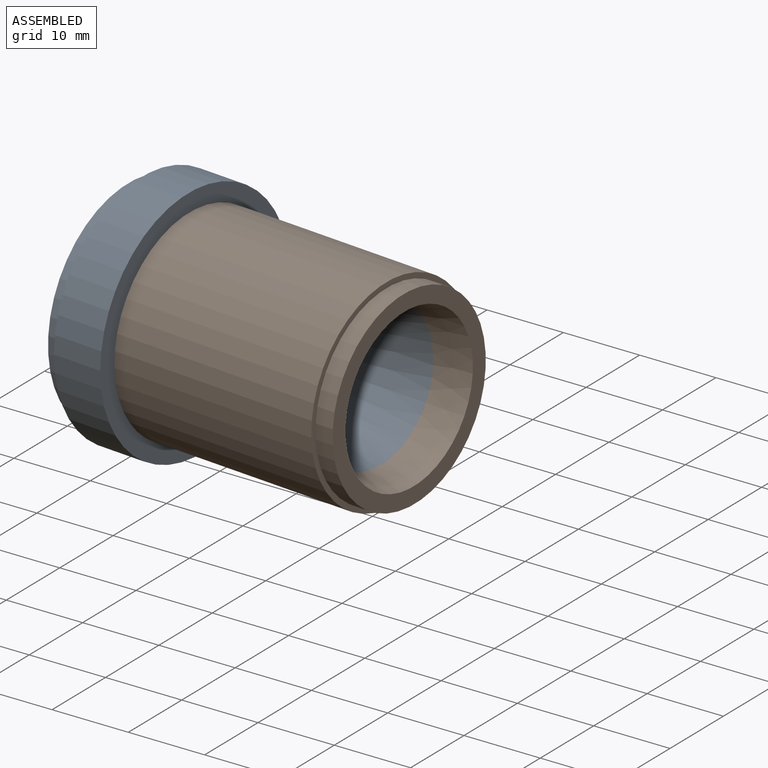
[diagram: assembled view]
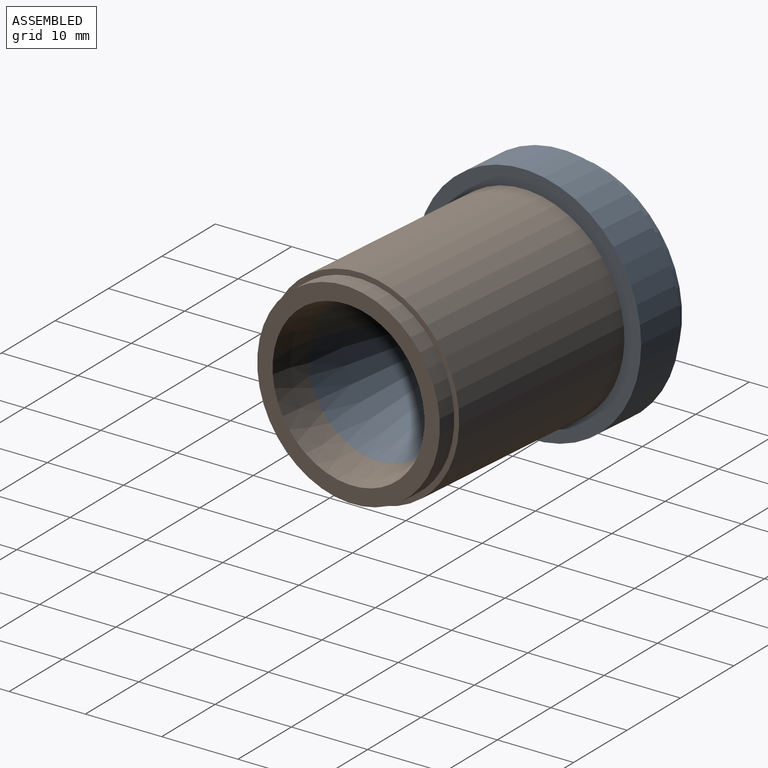
[diagram: assembled view, second angle]
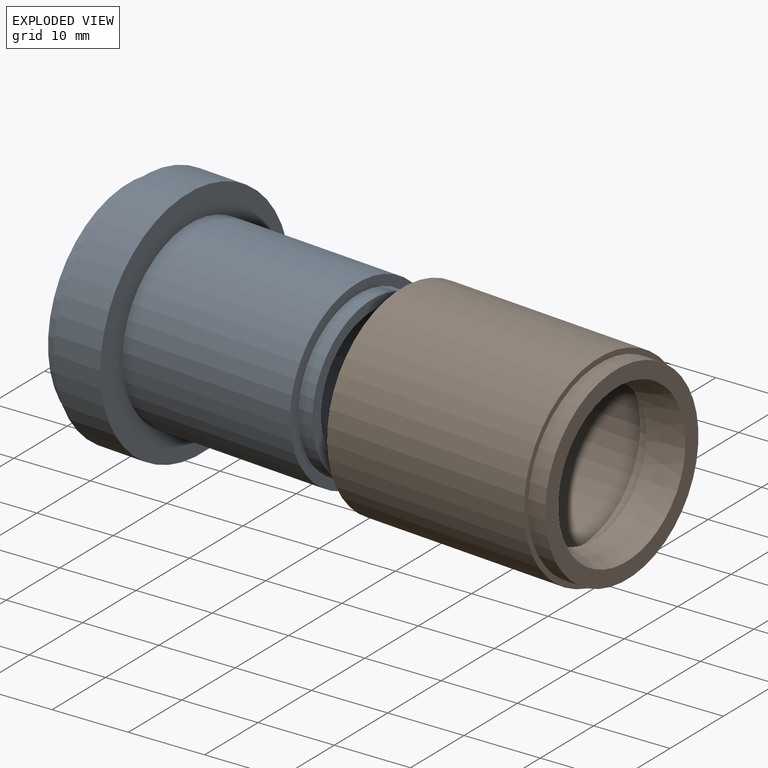
[diagram: exploded view]
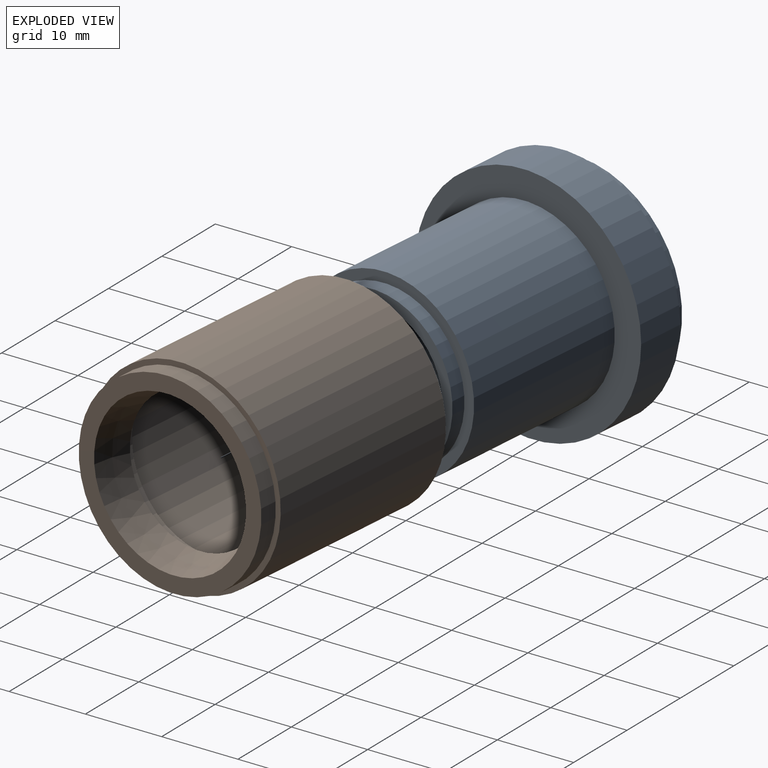
[diagram: exploded view, second angle]
ASSEMBLY  parts=2 mates=2
PART A: 12 faces, bbox 34x31.7x31.7 mm
  f0: cylinder r=14.45mm len=28.9mm, axis (-1,0,0), area 181.6mm2, adj f1,f11
  f1: plane 28.9x28.9mm, normal (-1,0,0), area 169mm2, adj f0,f2
  f2: cone r=12.45mm half-angle=35deg, axis (-1,0,0), area 738.1mm2, adj f1,f3
  f3: cylinder r=4.5mm len=9mm, axis (-1,0,0), area 140.7mm2, adj f2,f4
  f4: cone r=4.5mm half-angle=15.5deg, axis (1,0,0), area 800.7mm2, adj f3,f5
  f5: plane 21.6x21.6mm, normal (1,0,0), area 88.8mm2, adj f4,f6
  f6: cylinder r=10.8mm len=21.6mm, axis (-1,0,0), area 135.7mm2, adj f5,f7
  f7: plane 24.3x24.3mm, normal (1,0,0), area 97.3mm2, adj f6,f8
  f8: cylinder r=12.15mm len=24.3mm, axis (-1,0,0), area 1794mm2, adj f7,f9
  f9: plane 31.7x31.7mm, normal (1,0,0), area 325.5mm2, adj f8,f10
  f10: cylinder r=15.85mm len=31.7mm, axis (-1,0,0), area 647.3mm2, adj f9,f11
  f11: plane 31.7x31.7mm, normal (-1,0,0), area 133.3mm2, adj f0,f10
PART B: 10 faces, bbox 30x27x27 mm
  f0: plane 27x27mm, normal (-1,0,0), area 108.8mm2, adj f1,f9
  f1: cylinder r=12.15mm len=24.3mm, axis (-1,0,0), area 1794mm2, adj f0,f2
  f2: plane 24.3x24.3mm, normal (-1,0,0), area 97.3mm2, adj f1,f3
  f3: cylinder r=10.8mm len=21.6mm, axis (-1,0,0), area 135.7mm2, adj f2,f4
  f4: plane 21.6x21.6mm, normal (-1,0,0), area 88.7mm2, adj f3,f5
  f5: cone r=10.65mm half-angle=15.5deg, axis (1,0,0), area 294.2mm2, adj f4,f6
  f6: plane 25.6x25.6mm, normal (1,0,0), area 158.4mm2, adj f5,f7
  f7: cylinder r=12.8mm len=25.6mm, axis (-1,0,0), area 193mm2, adj f6,f8
  f8: plane 27x27mm, normal (1,0,0), area 57.8mm2, adj f7,f9
  f9: cylinder r=13.5mm len=27.6mm, axis (-1,0,0), area 2341.1mm2, adj f0,f8
PLACE A rot(axis=(0,0,-1),5deg) t=(18.4,10.57,5.14)mm
PLACE B rot(axis=(0,0,-1),5deg) t=(18.4,10.57,5.14)mm
MATE cylindrical B.f1 <-> A.f0  axis (-1,0.09,0) through (26.87,9.83,5.14)mm
MATE planar B.f1 <-> A.f0  axis (-1,0.09,0) through (26.87,9.83,5.14)mm
